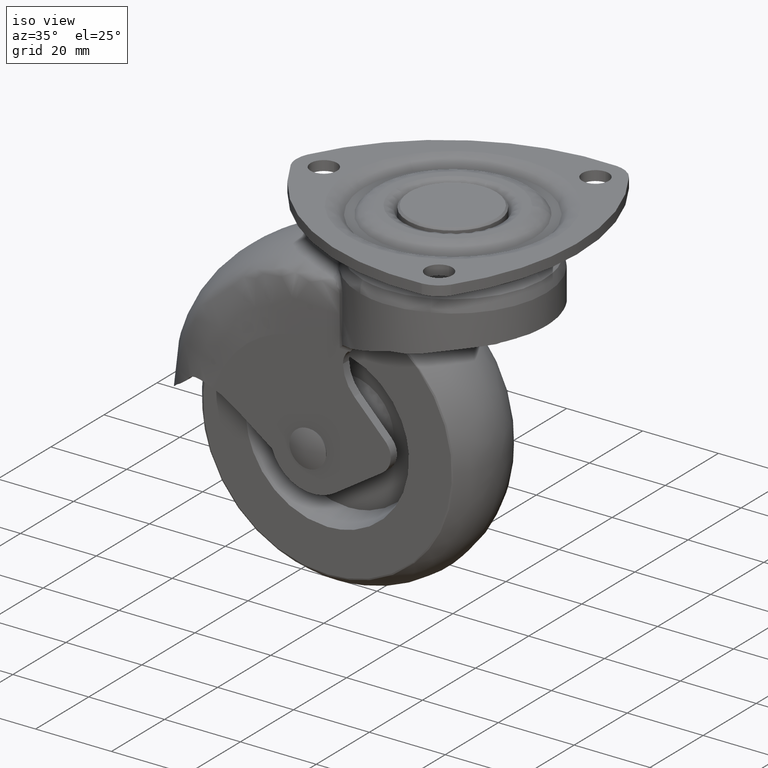
[diagram: clean part render]
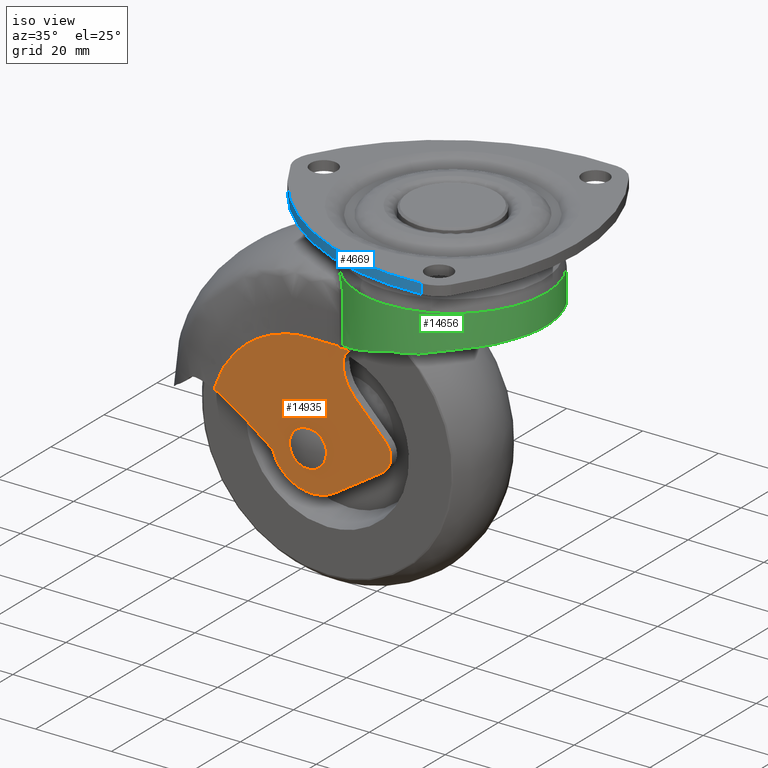
[diagram: same view with three faces highlighted in distinct colors, each labeled with its STEP entity id]
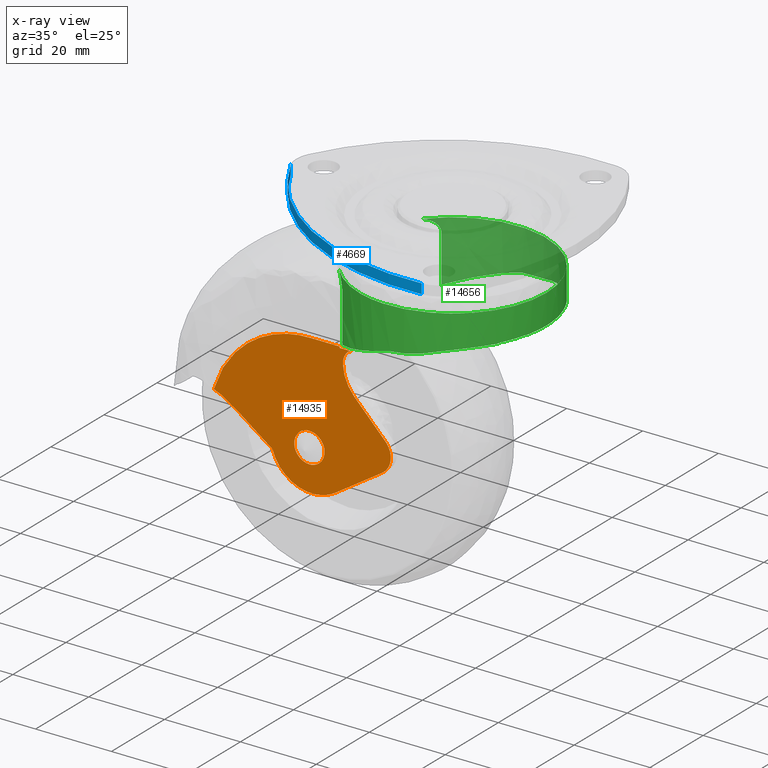
[diagram: x-ray of the same camera — body ghosted, the three highlighted faces saturated]
A machine part, iso view with three faces highlighted in distinct colors.
The next image is the same camera in x-ray (body ghosted, the three faces saturated) — at least one of them is partly hidden behind the body in this view.
Their STEP definitions:

[orange] entity #14935 — the highlighted face is a freeform B-spline surface patch.
#7384=CARTESIAN_POINT('',(-21.007460806320921,-18.300000000000001,-57.255805794820184));
#7385=VERTEX_POINT('',#7384);
#7391=CARTESIAN_POINT('',(-25.0,-18.300000000000001,-53.499999953096712));
#7392=VERTEX_POINT('',#7391);
#7393=CARTESIAN_POINT('',(-25.0,-18.300000000000001,-53.499999953096712));
#7394=CARTESIAN_POINT('',(-21.237175732636111,-18.300000000000011,-53.499999953096712));
#7395=CARTESIAN_POINT('',(-21.007460806320918,-18.300000000000001,-57.255805794820184));
#7403=(BOUNDED_CURVE()B_SPLINE_CURVE(2,(#7393,#7394,#7395),.UNSPECIFIED.,.F.,.U.)B_SPLINE_CURVE_WITH_KNOTS((3,3),(0.500000000000000,0.739332962230119),.UNSPECIFIED.)CURVE()GEOMETRIC_REPRESENTATION_ITEM()RATIONAL_B_SPLINE_CURVE((1.0,0.719603993297048,0.976072041647806))REPRESENTATION_ITEM(''));
#7404=EDGE_CURVE('',#7392,#7385,#7403,.T.);
#7406=CARTESIAN_POINT('',(-28.972038105448899,-18.300000000000001,-57.972136891772202));
#7407=VERTEX_POINT('',#7406);
#7408=CARTESIAN_POINT('',(-28.972038105448906,-18.300000000000001,-57.972136891772202));
#7409=CARTESIAN_POINT('',(-29.0,-18.299999999999994,-57.736896431753323));
#7410=CARTESIAN_POINT('',(-29.0,-18.300000000000001,-57.499999953096712));
#7411=CARTESIAN_POINT('',(-29.0,-18.300000000000001,-53.499999953096705));
#7412=CARTESIAN_POINT('',(-25.0,-18.300000000000001,-53.499999953096712));
#7420=(BOUNDED_CURVE()B_SPLINE_CURVE(2,(#7408,#7409,#7410,#7411,#7412),.UNSPECIFIED.,.F.,.U.)B_SPLINE_CURVE_WITH_KNOTS((3,2,3),(0.229562473511521,0.250000000000000,0.500000000000000),.UNSPECIFIED.)CURVE()GEOMETRIC_REPRESENTATION_ITEM()RATIONAL_B_SPLINE_CURVE((0.956026754179803,0.976055948328816,1.0,0.707106781186548,1.0))REPRESENTATION_ITEM(''));
#7421=EDGE_CURVE('',#7407,#7392,#7420,.T.);
#7465=CARTESIAN_POINT('',(-25.0,-18.300000000000001,-61.499999953096697));
#7466=VERTEX_POINT('',#7465);
#7467=CARTESIAN_POINT('',(-25.0,-18.300000000000001,-61.499999953096697));
#7468=CARTESIAN_POINT('',(-28.552698103718168,-18.300000000000004,-61.499999953096697));
#7469=CARTESIAN_POINT('',(-28.972038105448902,-18.300000000000008,-57.972136891772209));
#7477=(BOUNDED_CURVE()B_SPLINE_CURVE(2,(#7467,#7468,#7469),.UNSPECIFIED.,.F.,.U.)B_SPLINE_CURVE_WITH_KNOTS((3,3),(0.0,0.229562473511520),.UNSPECIFIED.)CURVE()GEOMETRIC_REPRESENTATION_ITEM()RATIONAL_B_SPLINE_CURVE((1.0,0.731050832857732,0.956026754179803))REPRESENTATION_ITEM(''));
#7478=EDGE_CURVE('',#7466,#7407,#7477,.T.);
#7480=CARTESIAN_POINT('',(-21.007460806320918,-18.300000000000001,-57.255805794820184));
#7481=CARTESIAN_POINT('',(-20.999999999999996,-18.300000000000004,-57.377788899764873));
#7482=CARTESIAN_POINT('',(-21.0,-18.300000000000001,-57.499999953096712));
#7483=CARTESIAN_POINT('',(-21.000000000000004,-18.300000000000001,-61.499999953096712));
#7484=CARTESIAN_POINT('',(-25.0,-18.300000000000001,-61.499999953096697));
#7492=(BOUNDED_CURVE()B_SPLINE_CURVE(2,(#7480,#7481,#7482,#7483,#7484),.UNSPECIFIED.,.F.,.U.)B_SPLINE_CURVE_WITH_KNOTS((3,2,3),(0.739332962230119,0.750000000000000,1.0),.UNSPECIFIED.)CURVE()GEOMETRIC_REPRESENTATION_ITEM()RATIONAL_B_SPLINE_CURVE((0.976072041647806,0.987502787889499,1.0,0.707106781186548,1.0))REPRESENTATION_ITEM(''));
#7493=EDGE_CURVE('',#7385,#7466,#7492,.T.);
#10979=CARTESIAN_POINT('',(-17.046099320972900,-18.300000000000001,-31.610879000000050));
#10980=VERTEX_POINT('',#10979);
#11055=CARTESIAN_POINT('',(-17.046102425195951,-18.300000000000001,-31.287769999999998));
#11056=VERTEX_POINT('',#11055);
#11101=CARTESIAN_POINT('',(-17.046099320972900,-18.300000000000001,-31.610879000000050));
#11102=CARTESIAN_POINT('',(-17.046102425195951,-18.300000000000001,-31.287769999999998));
#11103=QUASI_UNIFORM_CURVE('',1,(#11101,#11102),.UNSPECIFIED.,.F.,.U.);
#11104=EDGE_CURVE('',#10980,#11056,#11103,.T.);
#11885=CARTESIAN_POINT('',(-14.124589966944820,-18.300000000000001,-31.610879000000050));
#11886=VERTEX_POINT('',#11885);
#11887=CARTESIAN_POINT('',(-14.124589966944820,-18.300000000000001,-31.610879000000050));
#11888=CARTESIAN_POINT('',(-17.046099320972900,-18.300000000000001,-31.610879000000050));
#11889=QUASI_UNIFORM_CURVE('',1,(#11887,#11888),.UNSPECIFIED.,.F.,.U.);
#11890=EDGE_CURVE('',#11886,#10980,#11889,.T.);
#13290=CARTESIAN_POINT('',(-50.207508473559407,-18.300000000000001,-50.312137693318697));
#13291=VERTEX_POINT('',#13290);
#13299=CARTESIAN_POINT('',(-50.207508473559407,-18.300000000000001,-50.312137693318697));
#13300=CARTESIAN_POINT('',(-48.995257664423342,-18.300000000000001,-46.061299159340933));
#13301=CARTESIAN_POINT('',(-46.716146905110627,-18.300000000000001,-42.146455725329972));
#13302=CARTESIAN_POINT('',(-43.534845566438662,-18.300000000000001,-38.965154386658000));
#13303=CARTESIAN_POINT('',(-38.619098885583412,-18.300000000000001,-34.049407705802700));
#13304=CARTESIAN_POINT('',(-31.951915619043849,-18.300000000000001,-31.287769999999600));
#13305=CARTESIAN_POINT('',(-24.999999999998600,-18.300000000000001,-31.287769999999998));
#13306=CARTESIAN_POINT('',(-22.348700808397719,-18.300000000000001,-31.287769999999998));
#13307=CARTESIAN_POINT('',(-19.697401616796839,-18.300000000000001,-31.287769999999998));
#13308=CARTESIAN_POINT('',(-17.046102425195961,-18.300000000000001,-31.287769999999998));
#13309=B_SPLINE_CURVE_WITH_KNOTS('',3,(#13299,#13300,#13301,#13302,#13303,#13304,#13305,#13306,#13307,#13308),.UNSPECIFIED.,.F.,.U.,(4,3,3,4),(1.352834565080054,2.0,3.0,3.318155902992105),.UNSPECIFIED.);
#13310=EDGE_CURVE('',#13291,#11056,#13309,.T.);
#13427=CARTESIAN_POINT('',(-13.179507292334760,-18.300000000000001,-42.207269912696887));
#13428=VERTEX_POINT('',#13427);
#13434=CARTESIAN_POINT('',(-4.952273197888131,-18.300000000000001,-50.703396648435401));
#13435=VERTEX_POINT('',#13434);
#13436=CARTESIAN_POINT('',(-13.179507292334760,-18.300000000000001,-42.207269912696887));
#13437=CARTESIAN_POINT('',(-4.952273197888131,-18.300000000000001,-50.703396648435401));
#13438=QUASI_UNIFORM_CURVE('',1,(#13436,#13437),.UNSPECIFIED.,.F.,.U.);
#13439=EDGE_CURVE('',#13428,#13435,#13438,.T.);
#13472=CARTESIAN_POINT('',(-16.154043857779751,-18.300000000000001,-35.171783095885402));
#13473=VERTEX_POINT('',#13472);
#13479=CARTESIAN_POINT('',(-16.154043857779779,-18.300000000000001,-35.171783095885402));
#13480=CARTESIAN_POINT('',(-16.028439881342027,-18.300000000000004,-39.265225155197143));
#13481=CARTESIAN_POINT('',(-13.179507292334771,-18.300000000000001,-42.207269912696901));
#13489=(BOUNDED_CURVE()B_SPLINE_CURVE(2,(#13479,#13480,#13481),.UNSPECIFIED.,.F.,.U.)CURVE()GEOMETRIC_REPRESENTATION_ITEM()QUASI_UNIFORM_CURVE()RATIONAL_B_SPLINE_CURVE((1.0,0.932571919784052,1.0))REPRESENTATION_ITEM(''));
#13490=EDGE_CURVE('',#13473,#13428,#13489,.T.);
#13589=CARTESIAN_POINT('',(-14.778228296881840,-18.300000000000001,-31.861660974602700));
#13590=VERTEX_POINT('',#13589);
#13596=CARTESIAN_POINT('',(-14.778228296881849,-18.300000000000001,-31.861660974602689));
#13597=CARTESIAN_POINT('',(-16.214371047778531,-18.300000000000004,-33.205726465343098));
#13598=CARTESIAN_POINT('',(-16.154043857779751,-18.300000000000001,-35.171783095885402));
#13606=(BOUNDED_CURVE()B_SPLINE_CURVE(2,(#13596,#13597,#13598),.UNSPECIFIED.,.F.,.U.)CURVE()GEOMETRIC_REPRESENTATION_ITEM()QUASI_UNIFORM_CURVE()RATIONAL_B_SPLINE_CURVE((1.0,0.911207822454145,1.0))REPRESENTATION_ITEM(''));
#13607=EDGE_CURVE('',#13590,#13473,#13606,.T.);
#13627=CARTESIAN_POINT('',(-14.208397507781600,-18.300000000000001,-31.682298208941202));
#13628=VERTEX_POINT('',#13627);
#13629=CARTESIAN_POINT('',(-14.778228296881840,-18.300000000000001,-31.861660974602700));
#13630=CARTESIAN_POINT('',(-14.457216315265951,-18.300000000000001,-31.886657499505969));
#13631=CARTESIAN_POINT('',(-14.208397507781600,-18.300000000000001,-31.682298208941202));
#13639=(BOUNDED_CURVE()B_SPLINE_CURVE(2,(#13629,#13630,#13631),.UNSPECIFIED.,.F.,.U.)CURVE()GEOMETRIC_REPRESENTATION_ITEM()QUASI_UNIFORM_CURVE()RATIONAL_B_SPLINE_CURVE((1.0,0.927675212657828,1.0))REPRESENTATION_ITEM(''));
#13640=EDGE_CURVE('',#13590,#13628,#13639,.T.);
#13707=CARTESIAN_POINT('',(-14.208397507781600,-18.300000000000001,-31.682298208941202));
#13708=CARTESIAN_POINT('',(-14.165845121184443,-18.300000000000004,-31.647349729210465));
#13709=CARTESIAN_POINT('',(-14.124589966944820,-18.300000000000001,-31.610879000000050));
#13717=(BOUNDED_CURVE()B_SPLINE_CURVE(2,(#13707,#13708,#13709),.UNSPECIFIED.,.F.,.U.)CURVE()GEOMETRIC_REPRESENTATION_ITEM()QUASI_UNIFORM_CURVE()RATIONAL_B_SPLINE_CURVE((1.0,0.999835141074052,1.0))REPRESENTATION_ITEM(''));
#13718=EDGE_CURVE('',#13628,#11886,#13717,.T.);
#13919=CARTESIAN_POINT('',(-5.817731401935770,-18.300000000000001,-58.402660609861996));
#13920=VERTEX_POINT('',#13919);
#13921=CARTESIAN_POINT('',(-5.817731401935753,-18.300000000000001,-58.402660609862032));
#13922=CARTESIAN_POINT('',(-3.834184983865486,-18.300000000000001,-57.109898097085555));
#13923=CARTESIAN_POINT('',(-3.569709818995375,-18.300000000000001,-54.757081870890552));
#13924=CARTESIAN_POINT('',(-3.305234654125264,-18.300000000000001,-52.404265644695549));
#13925=CARTESIAN_POINT('',(-4.952273197888137,-18.300000000000001,-50.703396648435408));
#13933=(BOUNDED_CURVE()B_SPLINE_CURVE(2,(#13921,#13922,#13923,#13924,#13925),.UNSPECIFIED.,.F.,.U.)B_SPLINE_CURVE_WITH_KNOTS((3,2,3),(0.0,0.500000000000000,1.0),.UNSPECIFIED.)CURVE()GEOMETRIC_REPRESENTATION_ITEM()RATIONAL_B_SPLINE_CURVE((1.0,0.904483410382392,1.0,0.904483410382392,1.0))REPRESENTATION_ITEM(''));
#13934=EDGE_CURVE('',#13920,#13435,#13933,.T.);
#14000=CARTESIAN_POINT('',(-48.454342386355300,-18.300000000000001,-51.036551122672201));
#14001=VERTEX_POINT('',#14000);
#14007=CARTESIAN_POINT('',(-48.454342386355300,-18.300000000000001,-51.036551122672201));
#14008=CARTESIAN_POINT('',(-50.207508473559407,-18.300000000000001,-50.312137693318697));
#14009=QUASI_UNIFORM_CURVE('',1,(#14007,#14008),.UNSPECIFIED.,.F.,.U.);
#14010=EDGE_CURVE('',#14001,#13291,#14009,.T.);
#14051=CARTESIAN_POINT('',(-43.069651999999998,-18.300000000000001,-54.454900953096697));
#14052=VERTEX_POINT('',#14051);
#14058=CARTESIAN_POINT('',(-43.069651999999998,-18.300000000000001,-54.454900953096697));
#14059=CARTESIAN_POINT('',(-45.655245568241014,-18.300000000000001,-52.577567576334395));
#14060=CARTESIAN_POINT('',(-48.454342386355293,-18.300000000000001,-51.036551122672172));
#14068=(BOUNDED_CURVE()B_SPLINE_CURVE(2,(#14058,#14059,#14060),.UNSPECIFIED.,.F.,.U.)CURVE()GEOMETRIC_REPRESENTATION_ITEM()QUASI_UNIFORM_CURVE()RATIONAL_B_SPLINE_CURVE((1.0,0.998055181997854,1.0))REPRESENTATION_ITEM(''));
#14069=EDGE_CURVE('',#14052,#14001,#14068,.T.);
#14087=CARTESIAN_POINT('',(-34.750839257760397,-18.300000000000001,-60.494980210238403));
#14088=VERTEX_POINT('',#14087);
#14094=CARTESIAN_POINT('',(-34.750839257760397,-18.300000000000001,-60.494980210238403));
#14095=CARTESIAN_POINT('',(-43.069651999999998,-18.300000000000001,-54.454900953096697));
#14096=QUASI_UNIFORM_CURVE('',1,(#14094,#14095),.UNSPECIFIED.,.F.,.U.);
#14097=EDGE_CURVE('',#14088,#14052,#14096,.T.);
#14133=CARTESIAN_POINT('',(-18.249364755209001,-18.300000000000001,-66.504889386975705));
#14134=VERTEX_POINT('',#14133);
#14140=CARTESIAN_POINT('',(-34.750839257760433,-18.300000000000001,-60.494980210238417));
#14141=CARTESIAN_POINT('',(-33.157405161522092,-18.299999999999997,-65.745422506871719));
#14142=CARTESIAN_POINT('',(-28.001784810856002,-18.300000000000001,-67.623121984724506));
#14143=CARTESIAN_POINT('',(-22.846164460189904,-18.299999999999997,-69.500821462577292));
#14144=CARTESIAN_POINT('',(-18.249364755208980,-18.300000000000001,-66.504889386975748));
#14152=(BOUNDED_CURVE()B_SPLINE_CURVE(2,(#14140,#14141,#14142,#14143,#14144),.UNSPECIFIED.,.F.,.U.)B_SPLINE_CURVE_WITH_KNOTS((3,2,3),(0.0,0.500000000000000,1.0),.UNSPECIFIED.)CURVE()GEOMETRIC_REPRESENTATION_ITEM()RATIONAL_B_SPLINE_CURVE((1.0,0.894521773207874,1.0,0.894521773207874,1.0))REPRESENTATION_ITEM(''));
#14153=EDGE_CURVE('',#14088,#14134,#14152,.T.);
#14171=CARTESIAN_POINT('',(-5.817731401935770,-18.300000000000001,-58.402660609861996));
#14172=CARTESIAN_POINT('',(-18.249364755209001,-18.300000000000001,-66.504889386975705));
#14173=QUASI_UNIFORM_CURVE('',1,(#14171,#14172),.UNSPECIFIED.,.F.,.U.);
#14174=EDGE_CURVE('',#13920,#14134,#14173,.T.);
#14908=CARTESIAN_POINT('',(-52.538631662102517,-18.300000000000001,-70.131453375103547));
#14909=CARTESIAN_POINT('',(-1.207240130995378,-18.300000000000001,-70.131453375103547));
#14910=CARTESIAN_POINT('',(-52.538631662102517,-18.300000000000001,-29.439831569836318));
#14911=CARTESIAN_POINT('',(-1.207240130995378,-18.300000000000001,-29.439831569836318));
#14912=B_SPLINE_SURFACE_WITH_KNOTS('',1,1,((#14908,#14910),(#14909,#14911)),.UNSPECIFIED.,.F.,.F.,.U.,(2,2),(2,2),(0.0,51.331391531107137),(0.0,40.691621805267232),.UNSPECIFIED.);
#14913=ORIENTED_EDGE('',*,*,#11890,.T.);
#14914=ORIENTED_EDGE('',*,*,#11104,.T.);
#14915=ORIENTED_EDGE('',*,*,#13310,.F.);
#14916=ORIENTED_EDGE('',*,*,#14010,.F.);
#14917=ORIENTED_EDGE('',*,*,#14069,.F.);
#14918=ORIENTED_EDGE('',*,*,#14097,.F.);
#14919=ORIENTED_EDGE('',*,*,#14153,.T.);
#14920=ORIENTED_EDGE('',*,*,#14174,.F.);
#14921=ORIENTED_EDGE('',*,*,#13934,.T.);
#14922=ORIENTED_EDGE('',*,*,#13439,.F.);
#14923=ORIENTED_EDGE('',*,*,#13490,.F.);
#14924=ORIENTED_EDGE('',*,*,#13607,.F.);
#14925=ORIENTED_EDGE('',*,*,#13640,.T.);
#14926=ORIENTED_EDGE('',*,*,#13718,.T.);
#14927=EDGE_LOOP('',(#14913,#14914,#14915,#14916,#14917,#14918,#14919,#14920,#14921,#14922,#14923,#14924,#14925,#14926));
#14928=FACE_OUTER_BOUND('',#14927,.T.);
#14929=ORIENTED_EDGE('',*,*,#7404,.T.);
#14930=ORIENTED_EDGE('',*,*,#7493,.T.);
#14931=ORIENTED_EDGE('',*,*,#7478,.T.);
#14932=ORIENTED_EDGE('',*,*,#7421,.T.);
#14933=EDGE_LOOP('',(#14929,#14930,#14931,#14932));
#14934=FACE_BOUND('',#14933,.T.);
#14935=ADVANCED_FACE('',(#14928,#14934),#14912,.T.);

[blue] entity #4669 — the highlighted face is a freeform B-spline surface patch.
#4462=CARTESIAN_POINT('',(-40.512433752585700,-3.186017359993685,-0.000014399278325));
#4463=VERTEX_POINT('',#4462);
#4477=CARTESIAN_POINT('',(17.497044081159750,-36.677806277512147,-0.000014399278325));
#4478=VERTEX_POINT('',#4477);
#4479=CARTESIAN_POINT('',(-40.512433752585700,-3.186017359993685,-0.000014399278325));
#4480=CARTESIAN_POINT('',(-22.773694440163965,-39.445195359732807,-0.000014399278325));
#4481=CARTESIAN_POINT('',(17.497044081159750,-36.677806277512147,-0.000014399278325));
#4489=(BOUNDED_CURVE()B_SPLINE_CURVE(2,(#4479,#4480,#4481),.UNSPECIFIED.,.F.,.U.)CURVE()GEOMETRIC_REPRESENTATION_ITEM()QUASI_UNIFORM_CURVE()RATIONAL_B_SPLINE_CURVE((1.0,0.829708804344992,1.0))REPRESENTATION_ITEM(''));
#4490=EDGE_CURVE('',#4463,#4478,#4489,.T.);
#4607=CARTESIAN_POINT('',(17.497044081159750,-36.677806277512147,-2.600014399278260));
#4608=VERTEX_POINT('',#4607);
#4609=CARTESIAN_POINT('',(17.497044081159750,-36.677806277512147,-2.600014399278260));
#4610=CARTESIAN_POINT('',(17.497044081159750,-36.677806277512147,-0.000014399278325));
#4611=QUASI_UNIFORM_CURVE('',1,(#4609,#4610),.UNSPECIFIED.,.F.,.U.);
#4612=EDGE_CURVE('',#4608,#4478,#4611,.T.);
#4631=CARTESIAN_POINT('',(19.206063596198199,-36.535797713354192,-2.665014399278259));
#4632=CARTESIAN_POINT('',(19.206063596198199,-36.535797713354192,0.066610600721673));
#4633=CARTESIAN_POINT('',(-24.734558822512518,-40.820085420144288,-2.665014399278259));
#4634=CARTESIAN_POINT('',(-24.734558822512518,-40.820085420144288,0.066610600721673));
#4635=CARTESIAN_POINT('',(-41.897192241553697,-0.143588105086956,-2.665014399278259));
#4636=CARTESIAN_POINT('',(-41.897192241553697,-0.143588105086956,0.066610600721673));
#4644=(BOUNDED_SURFACE()B_SPLINE_SURFACE(1,2,((#4631,#4633,#4635),(#4632,#4634,#4636)),.UNSPECIFIED.,.F.,.F.,.U.)B_SPLINE_SURFACE_WITH_KNOTS((2,2),(3,3),(0.0,2.731624999999932),(0.0,78.782952600453697),.UNSPECIFIED.)GEOMETRIC_REPRESENTATION_ITEM()RATIONAL_B_SPLINE_SURFACE(((1.0,0.802438924306742,0.992536850836210),(1.0,0.802438924306742,0.992536850836210)))REPRESENTATION_ITEM('')SURFACE());
#4645=ORIENTED_EDGE('',*,*,#4490,.F.);
#4646=CARTESIAN_POINT('',(-40.512433752585700,-3.186017359993685,-2.600014399278260));
#4647=VERTEX_POINT('',#4646);
#4648=CARTESIAN_POINT('',(-40.512433752585700,-3.186017359993685,-2.600014399278260));
#4649=CARTESIAN_POINT('',(-40.512433752585700,-3.186017359993685,-0.000014399278325));
#4650=QUASI_UNIFORM_CURVE('',1,(#4648,#4649),.UNSPECIFIED.,.F.,.U.);
#4651=EDGE_CURVE('',#4647,#4463,#4650,.T.);
#4652=ORIENTED_EDGE('',*,*,#4651,.F.);
#4653=CARTESIAN_POINT('',(-40.512433752585700,-3.186017359993685,-2.600014399278260));
#4654=CARTESIAN_POINT('',(-22.773694440163965,-39.445195359732807,-2.600014399278260));
#4655=CARTESIAN_POINT('',(17.497044081159750,-36.677806277512147,-2.600014399278260));
#4663=(BOUNDED_CURVE()B_SPLINE_CURVE(2,(#4653,#4654,#4655),.UNSPECIFIED.,.F.,.U.)CURVE()GEOMETRIC_REPRESENTATION_ITEM()QUASI_UNIFORM_CURVE()RATIONAL_B_SPLINE_CURVE((1.0,0.829708804344992,1.0))REPRESENTATION_ITEM(''));
#4664=EDGE_CURVE('',#4647,#4608,#4663,.T.);
#4665=ORIENTED_EDGE('',*,*,#4664,.T.);
#4666=ORIENTED_EDGE('',*,*,#4612,.T.);
#4667=EDGE_LOOP('',(#4645,#4652,#4665,#4666));
#4668=FACE_OUTER_BOUND('',#4667,.T.);
#4669=ADVANCED_FACE('',(#4668),#4644,.T.);

[green] entity #14656 — the highlighted face is a freeform B-spline surface patch.
#9610=CARTESIAN_POINT('',(9.922295508212688,-22.539459713370668,-14.388141869462389));
#9611=VERTEX_POINT('',#9610);
#9625=CARTESIAN_POINT('',(-18.873077973117049,15.820433626912950,-14.388141869477501));
#9626=VERTEX_POINT('',#9625);
#9627=CARTESIAN_POINT('',(-18.873077973117059,15.820433626912960,-14.388141869477501));
#9628=CARTESIAN_POINT('',(-7.792564764519617,29.038996069617596,-14.388141869477504));
#9629=CARTESIAN_POINT('',(8.417116745549231,23.143710549838580,-14.388141869477501));
#9630=CARTESIAN_POINT('',(24.626798255618098,17.248425030059554,-14.388141869477504));
#9631=CARTESIAN_POINT('',(24.626798255618102,0.0,-14.388141869477501));
#9632=CARTESIAN_POINT('',(24.626798255618105,-16.066260115130763,-14.388141869477504));
#9633=CARTESIAN_POINT('',(9.922295508212688,-22.539459713370665,-14.388141869462395));
#9641=(BOUNDED_CURVE()B_SPLINE_CURVE(2,(#9627,#9628,#9629,#9630,#9631,#9632,#9633),.UNSPECIFIED.,.F.,.U.)B_SPLINE_CURVE_WITH_KNOTS((3,2,2,3),(0.0,0.250000000000000,0.500000000000000,0.735789341110267),.UNSPECIFIED.)CURVE()GEOMETRIC_REPRESENTATION_ITEM()RATIONAL_B_SPLINE_CURVE((1.0,0.819080853255457,1.0,0.819080853255457,1.0,0.829364774379490,0.980601288113075))REPRESENTATION_ITEM(''));
#9642=EDGE_CURVE('',#9626,#9611,#9641,.T.);
#9644=CARTESIAN_POINT('',(-18.873077973116999,-15.820433626912999,-14.388141869477501));
#9645=VERTEX_POINT('',#9644);
#9698=CARTESIAN_POINT('',(-8.156367922490748,-23.236885648381371,-14.388141869451429));
#9699=VERTEX_POINT('',#9698);
#9700=CARTESIAN_POINT('',(-8.156367922490748,-23.236885648381378,-14.388141869451429));
#9701=CARTESIAN_POINT('',(-14.532201456226389,-20.998907422699567,-14.388141869477501));
#9702=CARTESIAN_POINT('',(-18.873077973117010,-15.820433626913029,-14.388141869477501));
#9710=(BOUNDED_CURVE()B_SPLINE_CURVE(2,(#9700,#9701,#9702),.UNSPECIFIED.,.F.,.U.)B_SPLINE_CURVE_WITH_KNOTS((3,3),(0.889950421628687,1.0),.UNSPECIFIED.)CURVE()GEOMETRIC_REPRESENTATION_ITEM()RATIONAL_B_SPLINE_CURVE((0.910834447825182,0.920359696725861,1.0))REPRESENTATION_ITEM(''));
#9711=EDGE_CURVE('',#9699,#9645,#9710,.T.);
#9748=CARTESIAN_POINT('',(9.922295508212688,-22.539459713370672,-14.388141869462398));
#9749=CARTESIAN_POINT('',(9.179660619106501,-22.866381605825335,-14.388141869477504));
#9750=CARTESIAN_POINT('',(8.417116745549309,-23.143710549838548,-14.388141869477501));
#9751=CARTESIAN_POINT('',(0.147021848105577,-26.151454450655741,-14.388141869477504));
#9752=CARTESIAN_POINT('',(-8.156367922490748,-23.236885648381374,-14.388141869451438));
#9760=(BOUNDED_CURVE()B_SPLINE_CURVE(2,(#9748,#9749,#9750,#9751,#9752),.UNSPECIFIED.,.F.,.U.)B_SPLINE_CURVE_WITH_KNOTS((3,2,3),(0.735789341110268,0.750000000000000,0.889950421628688),.UNSPECIFIED.)CURVE()GEOMETRIC_REPRESENTATION_ITEM()RATIONAL_B_SPLINE_CURVE((0.980601288113075,0.989716078875968,1.0,0.898721156529595,0.910834447825183))REPRESENTATION_ITEM(''));
#9761=EDGE_CURVE('',#9611,#9699,#9760,.T.);
#10306=CARTESIAN_POINT('',(-18.993298132573852,15.675899909633349,-14.427053240921900));
#10307=VERTEX_POINT('',#10306);
#10334=CARTESIAN_POINT('',(-16.067446219484950,18.663236158640100,-30.632222794289000));
#10335=VERTEX_POINT('',#10334);
#10336=CARTESIAN_POINT('',(-16.067446219484950,18.663236158640100,-30.632222794289000));
#10337=CARTESIAN_POINT('',(-16.067446219485131,18.663236158639950,-27.544429797764192));
#10338=CARTESIAN_POINT('',(-16.067446219486950,18.663236158638391,-23.684688552108181));
#10339=CARTESIAN_POINT('',(-16.067446219490559,18.663236158635279,-19.631960244169370));
#10340=CARTESIAN_POINT('',(-16.067446219491590,18.663236158634390,-18.570531401613980));
#10341=CARTESIAN_POINT('',(-16.067446219491941,18.663236158634088,-18.232804042619080));
#10342=CARTESIAN_POINT('',(-16.067446219492091,18.663236158633961,-18.088063745906972));
#10343=CARTESIAN_POINT('',(-16.067446219492162,18.663236158633900,-18.015693597550928));
#10344=CARTESIAN_POINT('',(-16.067363906680100,18.663307025187919,-17.991569711100240));
#10345=CARTESIAN_POINT('',(-16.067835723059350,18.662900824976081,-17.943325832516141));
#10346=CARTESIAN_POINT('',(-16.070375042221560,18.660714025719461,-17.822724458271161));
#10347=CARTESIAN_POINT('',(-16.079714392947860,18.652673886856189,-17.702164689550159));
#10348=CARTESIAN_POINT('',(-16.103468144242580,18.632170346353782,-17.509323134917270));
#10349=CARTESIAN_POINT('',(-16.119927348439450,18.617944957552929,-17.412332229239890));
#10350=CARTESIAN_POINT('',(-16.180736763602091,18.565178443664529,-17.129786229782439));
#10351=CARTESIAN_POINT('',(-16.236478695129779,18.516594519864999,-16.950314502462099));
#10352=CARTESIAN_POINT('',(-16.338901143838449,18.426111814932860,-16.692404663130471));
#10353=CARTESIAN_POINT('',(-16.376200298425971,18.392992965302909,-16.608332190900690));
#10354=CARTESIAN_POINT('',(-16.456683713065122,18.321017646516982,-16.443788395295918));
#10355=CARTESIAN_POINT('',(-16.499436992642899,18.282544282209692,-16.364220631704971));
#10356=CARTESIAN_POINT('',(-16.633408874858379,18.161042355403151,-16.134315705845481));
#10357=CARTESIAN_POINT('',(-16.730646644382471,18.071657028980109,-15.991961788967449));
#10358=CARTESIAN_POINT('',(-16.885915197001388,17.926240769739071,-15.792287311383820));
#10359=CARTESIAN_POINT('',(-16.939255869984859,17.875865142958229,-15.728058483137280));
#10360=CARTESIAN_POINT('',(-17.048846939031680,17.771374794526061,-15.604035385672979));
#10361=CARTESIAN_POINT('',(-17.105192301487730,17.717164119737980,-15.544171896838369));
#10362=CARTESIAN_POINT('',(-17.275914003441610,17.551273230864819,-15.373304121284910));
#10363=CARTESIAN_POINT('',(-17.392683700029728,17.435665721494640,-15.270082761893651));
#10364=CARTESIAN_POINT('',(-17.630801243691270,17.194846115811480,-15.082686943321301));
#10365=CARTESIAN_POINT('',(-17.752158596988359,17.069628160332179,-14.998532984737350));
#10366=CARTESIAN_POINT('',(-17.937097979842711,16.874470661463441,-14.886057670116120));
#10367=CARTESIAN_POINT('',(-17.999232158032079,16.808192444422041,-14.850868913939070));
#10368=CARTESIAN_POINT('',(-18.124425759659879,16.673118556827919,-14.785120327428620));
#10369=CARTESIAN_POINT('',(-18.187509042315821,16.604292561402779,-14.754562886160249));
#10370=CARTESIAN_POINT('',(-18.282010458931840,16.499985051013240,-14.712585890897991));
#10371=CARTESIAN_POINT('',(-18.313522868477900,16.465003021210620,-14.699219283927830));
#10372=CARTESIAN_POINT('',(-18.376566585441871,16.394610238537531,-14.673733859792010));
#10373=CARTESIAN_POINT('',(-18.408075858092221,16.359223560223711,-14.661494063127559));
#10374=CARTESIAN_POINT('',(-18.502198293540498,16.252902254105059,-14.624242773605680));
#10375=CARTESIAN_POINT('',(-18.689232183779879,16.039157055178961,-14.549891757255921));
#10376=CARTESIAN_POINT('',(-18.872638288088471,15.822094285198419,-14.476035449623261));
#10377=CARTESIAN_POINT('',(-18.993298132573852,15.675899909633349,-14.427053240921900));
#10378=B_SPLINE_CURVE_WITH_KNOTS('',3,(#10336,#10337,#10338,#10339,#10340,#10341,#10342,#10343,#10344,#10345,#10346,#10347,#10348,#10349,#10350,#10351,#10352,#10353,#10354,#10355,#10356,#10357,#10358,#10359,#10360,#10361,#10362,#10363,#10364,#10365,#10366,#10367,#10368,#10369,#10370,#10371,#10372,#10373,#10374,#10375,#10376,#10377),.UNSPECIFIED.,.F.,.U.,(4,1,1,1,1,2,2,1,2,2,2,2,2,2,2,2,2,2,2,2,2,2,1,4),(0.0,0.499999999999988,0.624999999999985,0.656249999999984,0.671874999999984,0.679687499999984,0.683593749999984,0.687499999999984,0.703124999999986,0.718749999999987,0.749999999999990,0.765624999999991,0.781249999999993,0.812499999999994,0.828124999999995,0.843749999999995,0.874999999999997,0.906249999999998,0.921874999999999,0.937500000000000,0.945312500000000,0.953125000000000,0.968750000000000,1.0),.UNSPECIFIED.);
#10379=EDGE_CURVE('',#10335,#10307,#10378,.T.);
#10679=CARTESIAN_POINT('',(-18.993298132573852,15.675899909633349,-14.427053240921900));
#10680=CARTESIAN_POINT('',(-18.992660287804149,15.676672731738369,-14.422918446283790));
#10681=CARTESIAN_POINT('',(-18.991142545762418,15.678511571083920,-14.419297463039211));
#10682=CARTESIAN_POINT('',(-18.987353345989721,15.683100218658630,-14.413413177125101));
#10683=CARTESIAN_POINT('',(-18.985088891496030,15.685841500169779,-14.411055543238010));
#10684=CARTESIAN_POINT('',(-18.978068302950039,15.694336128739900,-14.405126260398349));
#10685=CARTESIAN_POINT('',(-18.972941150678430,15.700534263090860,-14.402491211746350));
#10686=CARTESIAN_POINT('',(-18.957650660858540,15.718999412084340,-14.396139983069080));
#10687=CARTESIAN_POINT('',(-18.947207701205681,15.731585910902480,-14.393893848579880));
#10688=CARTESIAN_POINT('',(-18.915635203156551,15.769560162445540,-14.388870464290839));
#10689=CARTESIAN_POINT('',(-18.894364647463931,15.795039668943881,-14.388140085212660));
#10690=CARTESIAN_POINT('',(-18.873077973117049,15.820433626912950,-14.388141869477501));
#10691=B_SPLINE_CURVE_WITH_KNOTS('',3,(#10679,#10680,#10681,#10682,#10683,#10684,#10685,#10686,#10687,#10688,#10689,#10690),.UNSPECIFIED.,.F.,.U.,(4,2,2,2,2,4),(0.0,0.062499999999996,0.124999999999993,0.250000000000027,0.500000000000032,1.0),.UNSPECIFIED.);
#10692=EDGE_CURVE('',#10307,#9626,#10691,.T.);
#10760=CARTESIAN_POINT('',(-18.993298132567251,-15.675899909626549,-14.427053240923099));
#10761=VERTEX_POINT('',#10760);
#10791=CARTESIAN_POINT('',(-18.873077973116999,-15.820433626912999,-14.388141869477501));
#10792=CARTESIAN_POINT('',(-18.894391373032342,-15.795007682974891,-14.388141869477501));
#10793=CARTESIAN_POINT('',(-18.915674714469791,-15.769513349236670,-14.388863459166320));
#10794=CARTESIAN_POINT('',(-18.947324088827870,-15.731446027421610,-14.393913943690420));
#10795=CARTESIAN_POINT('',(-18.957871928833519,-15.718732767147300,-14.396193687934719));
#10796=CARTESIAN_POINT('',(-18.973176961975280,-15.700249421115620,-14.402606421029409));
#10797=CARTESIAN_POINT('',(-18.978245205799858,-15.694122270449590,-14.405239595618550));
#10798=CARTESIAN_POINT('',(-18.985202036650151,-15.685704600281960,-14.411168767684350));
#10799=CARTESIAN_POINT('',(-18.987429158505410,-15.683008464732330,-14.413509379566820));
#10800=CARTESIAN_POINT('',(-18.991169111062629,-15.678479401687770,-14.419360144255700));
#10801=CARTESIAN_POINT('',(-18.992668500032771,-15.676662787580019,-14.422971576512330));
#10802=CARTESIAN_POINT('',(-18.993298132567251,-15.675899909626549,-14.427053240923099));
#10803=B_SPLINE_CURVE_WITH_KNOTS('',3,(#10791,#10792,#10793,#10794,#10795,#10796,#10797,#10798,#10799,#10800,#10801,#10802),.UNSPECIFIED.,.F.,.U.,(4,2,2,2,2,4),(0.0,0.500000000000043,0.750000000000049,0.875000000000036,0.937500000000018,1.0),.UNSPECIFIED.);
#10804=EDGE_CURVE('',#9645,#10761,#10803,.T.);
#10977=CARTESIAN_POINT('',(-16.067446219484900,-18.663236158640149,-30.632222794289000));
#10978=VERTEX_POINT('',#10977);
#10999=CARTESIAN_POINT('',(-18.993298132567251,-15.675899909626560,-14.427053240923090));
#11000=CARTESIAN_POINT('',(-18.874094714465951,-15.820329643898390,-14.475444209172990));
#11001=CARTESIAN_POINT('',(-18.692962517699119,-16.034761029908360,-14.548391754502299));
#11002=CARTESIAN_POINT('',(-18.508338334582639,-16.245902918444461,-14.621804282749940));
#11003=CARTESIAN_POINT('',(-18.415443563149431,-16.350927640506931,-14.658581648028280));
#11004=CARTESIAN_POINT('',(-18.384351842620330,-16.385877991199479,-14.670708104414150));
#11005=CARTESIAN_POINT('',(-18.322111759704210,-16.455443199155731,-14.695654024304440));
#11006=CARTESIAN_POINT('',(-18.291016029850550,-16.489999652245771,-14.708728834149760));
#11007=CARTESIAN_POINT('',(-18.135670426028110,-16.661661808635500,-14.777111030665960));
#11008=CARTESIAN_POINT('',(-18.011810081771401,-16.795417694263509,-14.841396618552960));
#11009=CARTESIAN_POINT('',(-17.826971621569228,-16.990771943538078,-14.952704196359569));
#11010=CARTESIAN_POINT('',(-17.765431812295748,-17.055098445125662,-14.992356232982980));
#11011=CARTESIAN_POINT('',(-17.643135698601359,-17.181580636571120,-15.076586733330069));
#11012=CARTESIAN_POINT('',(-17.582713702721801,-17.243392893385099,-15.120927240436449));
#11013=CARTESIAN_POINT('',(-17.403754875548660,-17.424619334558638,-15.260681009918390));
#11014=CARTESIAN_POINT('',(-17.287501495530972,-17.539845894161779,-15.362778448823480));
#11015=CARTESIAN_POINT('',(-17.062278135526640,-17.759013676858810,-15.586166465019829));
#11016=CARTESIAN_POINT('',(-16.953290918744528,-17.862966902265860,-15.707426718127159));
#11017=CARTESIAN_POINT('',(-16.796857285539168,-18.009717076009210,-15.906101657649540));
#11018=CARTESIAN_POINT('',(-16.745889860623290,-18.057097966870089,-15.975204846822880));
#11019=CARTESIAN_POINT('',(-16.648348360240220,-18.147068939235261,-16.117177502507101));
#11020=CARTESIAN_POINT('',(-16.601556897551180,-18.189864056990331,-16.190308574557051));
#11021=CARTESIAN_POINT('',(-16.467682938037552,-18.311449047038789,-16.416552874539519));
#11022=CARTESIAN_POINT('',(-16.387011717456780,-18.383517871278030,-16.576430061496250));
#11023=CARTESIAN_POINT('',(-16.282398361936970,-18.476062435433061,-16.832743848657529));
#11024=CARTESIAN_POINT('',(-16.250153138540210,-18.504409609892239,-16.921416337617750));
#11025=CARTESIAN_POINT('',(-16.193047236970870,-18.554403068218349,-17.101798797927440));
#11026=CARTESIAN_POINT('',(-16.168084402663549,-18.576141657968272,-17.193655254489322));
#11027=CARTESIAN_POINT('',(-16.136448871288842,-18.603613219166061,-17.334103694078969));
#11028=CARTESIAN_POINT('',(-16.126872993588709,-18.611913057643829,-17.381364397437022));
#11029=CARTESIAN_POINT('',(-16.109746122292659,-18.626739384334289,-17.476810502665732));
#11030=CARTESIAN_POINT('',(-16.102208621532910,-18.633254181058081,-17.524966407481610));
#11031=CARTESIAN_POINT('',(-16.082950648199521,-18.649884667983269,-17.669180260797120));
#11032=CARTESIAN_POINT('',(-16.074477745774530,-18.657181101417660,-17.765528003237730));
#11033=CARTESIAN_POINT('',(-16.068302141347392,-18.662499446856110,-17.910355597515871));
#11034=CARTESIAN_POINT('',(-16.067446219492219,-18.663236158633850,-17.958687792780911));
#11035=CARTESIAN_POINT('',(-16.067446219492119,-18.663236158633939,-18.055432334777151));
#11036=CARTESIAN_POINT('',(-16.067446219491980,-18.663236158634071,-18.200549147771529));
#11037=CARTESIAN_POINT('',(-16.067446219491629,-18.663236158634358,-18.539155044758370));
#11038=CARTESIAN_POINT('',(-16.067446219490570,-18.663236158635272,-19.603345006717070));
#11039=CARTESIAN_POINT('',(-16.067446219486978,-18.663236158638369,-23.666615770559350));
#11040=CARTESIAN_POINT('',(-16.067446219485092,-18.663236158639990,-27.536397450409169));
#11041=CARTESIAN_POINT('',(-16.067446219484900,-18.663236158640149,-30.632222794289000));
#11042=B_SPLINE_CURVE_WITH_KNOTS('',3,(#10999,#11000,#11001,#11002,#11003,#11004,#11005,#11006,#11007,#11008,#11009,#11010,#11011,#11012,#11013,#11014,#11015,#11016,#11017,#11018,#11019,#11020,#11021,#11022,#11023,#11024,#11025,#11026,#11027,#11028,#11029,#11030,#11031,#11032,#11033,#11034,#11035,#11036,#11037,#11038,#11039,#11040,#11041),.UNSPECIFIED.,.F.,.U.,(4,1,2,2,2,2,2,2,2,2,2,2,2,2,2,2,2,2,2,1,1,1,1,4),(0.0,0.031250000000001,0.046875000000001,0.054687500000001,0.062500000000001,0.093750000000001,0.109375000000001,0.125000000000002,0.156250000000002,0.187500000000003,0.203125000000003,0.218750000000003,0.250000000000005,0.265625000000006,0.281250000000006,0.289062500000007,0.296875000000007,0.312500000000009,0.320312500000009,0.328125000000009,0.343750000000009,0.375000000000009,0.500000000000007,1.0),.UNSPECIFIED.);
#11043=EDGE_CURVE('',#10761,#10978,#11042,.T.);
#11692=CARTESIAN_POINT('',(-7.173683082527550,23.558809031032801,-27.609882467359299));
#11693=VERTEX_POINT('',#11692);
#11752=CARTESIAN_POINT('',(-15.314107935785350,19.286194805101601,-30.201622379758199));
#11753=VERTEX_POINT('',#11752);
#11759=CARTESIAN_POINT('',(-7.173683082527531,23.558809031032769,-27.609882467359309));
#11760=CARTESIAN_POINT('',(-7.913201256664300,23.333624939254680,-27.815864008135300));
#11761=CARTESIAN_POINT('',(-8.634501694231568,23.076117454067870,-28.036633055706581));
#11762=CARTESIAN_POINT('',(-10.047002153667060,22.497101235177670,-28.488073130101249));
#11763=CARTESIAN_POINT('',(-10.738175971003120,22.175583742926332,-28.718817182799949));
#11764=CARTESIAN_POINT('',(-11.755363566642410,21.643407096478761,-29.060011952270141));
#11765=CARTESIAN_POINT('',(-12.091148641427409,21.457674555781889,-29.172940518514679));
#11766=CARTESIAN_POINT('',(-12.590170827582730,21.166103223832430,-29.339648930522511));
#11767=CARTESIAN_POINT('',(-12.755734917732740,21.066749041977491,-29.394771113216532));
#11768=CARTESIAN_POINT('',(-13.085345034805471,20.863615070481369,-29.503872036608801));
#11769=CARTESIAN_POINT('',(-13.249529451084451,20.759743731648459,-29.557895748786301));
#11770=CARTESIAN_POINT('',(-14.064583523973120,20.230451278745811,-29.823823072247919));
#11771=CARTESIAN_POINT('',(-14.698147508269050,19.775295151429390,-30.023299280075520));
#11772=CARTESIAN_POINT('',(-15.314107935785350,19.286194805101601,-30.201622379758199));
#11773=B_SPLINE_CURVE_WITH_KNOTS('',3,(#11759,#11760,#11761,#11762,#11763,#11764,#11765,#11766,#11767,#11768,#11769,#11770,#11771,#11772),.UNSPECIFIED.,.F.,.U.,(4,2,2,2,2,2,4),(0.0,0.249999999999999,0.499999999999999,0.624999999999999,0.687499999999999,0.749999999999999,0.999999983616640),.UNSPECIFIED.);
#11774=EDGE_CURVE('',#11693,#11753,#11773,.T.);
#11801=CARTESIAN_POINT('',(-16.067446219484939,18.663236158640110,-30.632222794289021));
#11802=CARTESIAN_POINT('',(-16.013273650798670,18.709874095734168,-30.578050225602752));
#11803=CARTESIAN_POINT('',(-15.955286500318850,18.759374870375620,-30.528472295321428));
#11804=CARTESIAN_POINT('',(-15.835969276012721,18.860206518586111,-30.439856734186542));
#11805=CARTESIAN_POINT('',(-15.774459530028460,18.911699034886482,-30.400552580648839));
#11806=CARTESIAN_POINT('',(-15.648189927415681,19.016311047260420,-30.330332135822459));
#11807=CARTESIAN_POINT('',(-15.583426361444291,19.069434106711348,-30.299427990882929));
#11808=CARTESIAN_POINT('',(-15.450894751495641,19.176974362264961,-30.245057149070799));
#11809=CARTESIAN_POINT('',(-15.382968468051789,19.231516438824539,-30.221557733077230));
#11810=CARTESIAN_POINT('',(-15.314107935785350,19.286194805101601,-30.201622379758199));
#11811=B_SPLINE_CURVE_WITH_KNOTS('',3,(#11801,#11802,#11803,#11804,#11805,#11806,#11807,#11808,#11809,#11810),.UNSPECIFIED.,.F.,.U.,(4,2,2,2,4),(0.0,0.250000000000000,0.500000000000000,0.750000000000000,1.0),.UNSPECIFIED.);
#11812=EDGE_CURVE('',#10335,#11753,#11811,.T.);
#11866=CARTESIAN_POINT('',(-15.314107935785300,-19.286194805101651,-30.201622379758199));
#11867=VERTEX_POINT('',#11866);
#11873=CARTESIAN_POINT('',(-15.314107935785300,-19.286194805101651,-30.201622379758199));
#11874=CARTESIAN_POINT('',(-15.452062835186959,-19.176652397122432,-30.241560782369191));
#11875=CARTESIAN_POINT('',(-15.584522989703601,-19.069051160837130,-30.294991243900458));
#11876=CARTESIAN_POINT('',(-15.773824469986611,-18.912228525077818,-30.400167016766179));
#11877=CARTESIAN_POINT('',(-15.835348532729791,-18.860728045661411,-30.439435914266578));
#11878=CARTESIAN_POINT('',(-15.954793172123621,-18.759794785662869,-30.528066080153948));
#11879=CARTESIAN_POINT('',(-16.013008444762811,-18.710102415393301,-30.577785019566878));
#11880=CARTESIAN_POINT('',(-16.067446219484911,-18.663236158640139,-30.632222794288989));
#11881=B_SPLINE_CURVE_WITH_KNOTS('',3,(#11873,#11874,#11875,#11876,#11877,#11878,#11879,#11880),.UNSPECIFIED.,.F.,.U.,(4,2,2,4),(0.0,0.499999999999998,0.749999999999999,1.0),.UNSPECIFIED.);
#11882=EDGE_CURVE('',#11867,#10978,#11881,.T.);
#11980=CARTESIAN_POINT('',(-7.173683082528211,-23.558809031032549,-27.609882467359501));
#11981=VERTEX_POINT('',#11980);
#11995=CARTESIAN_POINT('',(-15.314107935785300,-19.286194805101651,-30.201622379758199));
#11996=CARTESIAN_POINT('',(-14.697072151138739,-19.776149033470730,-30.022987960625329));
#11997=CARTESIAN_POINT('',(-14.066112411831570,-20.229099388441551,-29.824262298111080));
#11998=CARTESIAN_POINT('',(-12.775021844387320,-21.068241440678239,-29.403137234494960));
#11999=CARTESIAN_POINT('',(-12.114903751869070,-21.454398196217451,-29.180638061523620));
#12000=CARTESIAN_POINT('',(-10.762679188404171,-22.163637597795219,-28.727011428549911));
#12001=CARTESIAN_POINT('',(-10.070597190086890,-22.486714880997191,-28.495798846747078));
#12002=CARTESIAN_POINT('',(-9.004834439502648,-22.924652323211308,-28.154904086021372));
#12003=CARTESIAN_POINT('',(-8.644955293146200,-23.062829813777281,-28.042279070978481));
#12004=CARTESIAN_POINT('',(-8.097538337154827,-23.258259276763489,-27.876672676128148));
#12005=CARTESIAN_POINT('',(-7.913856349157515,-23.321402291988679,-27.822047912777379));
#12006=CARTESIAN_POINT('',(-7.545075123502039,-23.443309675909379,-27.714599278514019));
#12007=CARTESIAN_POINT('',(-7.359829098635659,-23.502127365806150,-27.661730609228201));
#12008=CARTESIAN_POINT('',(-7.173683082528213,-23.558809031032560,-27.609882467359501));
#12009=B_SPLINE_CURVE_WITH_KNOTS('',3,(#11995,#11996,#11997,#11998,#11999,#12000,#12001,#12002,#12003,#12004,#12005,#12006,#12007,#12008),.UNSPECIFIED.,.F.,.U.,(4,2,2,2,2,2,4),(0.000000016354804,0.250000000000000,0.500000000000000,0.750000000000000,0.875000000000000,0.937500000000000,1.0),.UNSPECIFIED.);
#12010=EDGE_CURVE('',#11867,#11981,#12009,.T.);
#12358=CARTESIAN_POINT('',(7.517743410269629,23.451284504439549,-24.509368551205750));
#12359=VERTEX_POINT('',#12358);
#12366=CARTESIAN_POINT('',(4.198506369731574,24.266267866990500,-24.989711170557399));
#12367=VERTEX_POINT('',#12366);
#12373=CARTESIAN_POINT('',(4.198506369731613,24.266267866990500,-24.989711170557381));
#12374=CARTESIAN_POINT('',(5.886470081463595,23.974219397302960,-24.745438140843181));
#12375=CARTESIAN_POINT('',(7.517743410269629,23.451284504439549,-24.509368551205750));
#12383=(BOUNDED_CURVE()B_SPLINE_CURVE(2,(#12373,#12374,#12375),.UNSPECIFIED.,.F.,.U.)CURVE()GEOMETRIC_REPRESENTATION_ITEM()QUASI_UNIFORM_CURVE()RATIONAL_B_SPLINE_CURVE((1.0,0.997589441414327,1.0))REPRESENTATION_ITEM(''));
#12384=EDGE_CURVE('',#12367,#12359,#12383,.T.);
#12403=CARTESIAN_POINT('',(14.136879930797219,20.165015193434250,-23.075133335102699));
#12404=VERTEX_POINT('',#12403);
#12412=CARTESIAN_POINT('',(7.517743410269629,23.451284504439549,-24.509368551205750));
#12413=CARTESIAN_POINT('',(8.688740548878361,23.075899715045740,-24.188415628146430));
#12414=CARTESIAN_POINT('',(9.827021469545011,22.614749590173460,-23.912988526937038));
#12415=CARTESIAN_POINT('',(12.035146505989760,21.520978104363930,-23.439184630117960));
#12416=CARTESIAN_POINT('',(13.105025933534639,20.888406470027959,-23.240856812339231));
#12417=CARTESIAN_POINT('',(14.136879930797219,20.165015193434250,-23.075133335102699));
#12418=B_SPLINE_CURVE_WITH_KNOTS('',3,(#12412,#12413,#12414,#12415,#12416,#12417),.UNSPECIFIED.,.F.,.U.,(4,2,4),(0.0,0.500000000000000,1.0),.UNSPECIFIED.);
#12419=EDGE_CURVE('',#12359,#12404,#12418,.T.);
#12438=CARTESIAN_POINT('',(20.788905299943899,13.202296329017020,-22.525146326671450));
#12439=VERTEX_POINT('',#12438);
#12447=CARTESIAN_POINT('',(14.136879930797241,20.165015193434250,-23.075133335102699));
#12448=CARTESIAN_POINT('',(14.799612393701780,19.700400157717660,-22.968693591159742));
#12449=CARTESIAN_POINT('',(15.435334855745250,19.206103143026979,-22.882266454239740));
#12450=CARTESIAN_POINT('',(16.653659328418019,18.159834553832550,-22.741539906884672));
#12451=CARTESIAN_POINT('',(17.236259812076430,17.607859785894860,-22.687257262747870));
#12452=CARTESIAN_POINT('',(18.347825676442820,16.446357392930508,-22.604110284933881));
#12453=CARTESIAN_POINT('',(18.876795987930031,15.836833712375610,-22.575257506489439));
#12454=CARTESIAN_POINT('',(19.628552889910718,14.878306442459410,-22.546553573988760));
#12455=CARTESIAN_POINT('',(19.872515437929930,14.550893837699389,-22.539416421035110));
#12456=CARTESIAN_POINT('',(20.343208433590089,13.885217028706130,-22.529348623750789));
#12457=CARTESIAN_POINT('',(20.570229070866489,13.546633352164781,-22.526400576136911));
#12458=CARTESIAN_POINT('',(20.788905299943899,13.202296329017020,-22.525146326671450));
#12459=B_SPLINE_CURVE_WITH_KNOTS('',3,(#12447,#12448,#12449,#12450,#12451,#12452,#12453,#12454,#12455,#12456,#12457,#12458),.UNSPECIFIED.,.F.,.U.,(4,2,2,2,2,4),(0.0,0.250000000000000,0.500000000000000,0.750000000000000,0.875000000000000,1.0),.UNSPECIFIED.);
#12460=EDGE_CURVE('',#12404,#12439,#12459,.T.);
#12479=CARTESIAN_POINT('',(21.883017626852599,11.296581406428739,-22.314490825740549));
#12480=VERTEX_POINT('',#12479);
#12488=CARTESIAN_POINT('',(20.788905299943899,13.202296329017020,-22.525146326671450));
#12489=CARTESIAN_POINT('',(20.885166157179089,13.050719830862260,-22.475017927167219));
#12490=CARTESIAN_POINT('',(20.980385212146931,12.897117419308049,-22.435524474765380));
#12491=CARTESIAN_POINT('',(21.168332697741210,12.586258068831761,-22.373055692362222));
#12492=CARTESIAN_POINT('',(21.261064554479312,12.428997054756531,-22.350125836432049));
#12493=CARTESIAN_POINT('',(21.443781107390851,12.111031566104939,-22.318084066760019));
#12494=CARTESIAN_POINT('',(21.533767258128471,11.950325471341340,-22.308990635537398));
#12495=CARTESIAN_POINT('',(21.710806273527002,11.625588249702320,-22.302922681367232));
#12496=CARTESIAN_POINT('',(21.797943922837629,11.461380766497490,-22.305980456602899));
#12497=CARTESIAN_POINT('',(21.883017626852599,11.296581406428739,-22.314490825740549));
#12498=B_SPLINE_CURVE_WITH_KNOTS('',3,(#12488,#12489,#12490,#12491,#12492,#12493,#12494,#12495,#12496,#12497),.UNSPECIFIED.,.F.,.U.,(4,2,2,2,4),(0.0,0.250000000000000,0.500000000000000,0.750000000000000,1.0),.UNSPECIFIED.);
#12499=EDGE_CURVE('',#12439,#12480,#12498,.T.);
#12520=CARTESIAN_POINT('',(22.487158880475750,10.040263811945060,-22.245643121135000));
#12521=VERTEX_POINT('',#12520);
#12522=CARTESIAN_POINT('',(22.487158880475750,10.040263811945060,-22.245643121135000));
#12523=CARTESIAN_POINT('',(22.392810117937199,10.251576549889821,-22.277606321833730));
#12524=CARTESIAN_POINT('',(22.295324434331420,10.461916256811961,-22.299809862567841));
#12525=CARTESIAN_POINT('',(22.093988536956530,10.880664225732760,-22.323595030797151));
#12526=CARTESIAN_POINT('',(21.990139394425789,11.089071944611399,-22.325206095321469));
#12527=CARTESIAN_POINT('',(21.883017626852599,11.296581406428739,-22.314490825740549));
#12528=B_SPLINE_CURVE_WITH_KNOTS('',3,(#12522,#12523,#12524,#12525,#12526,#12527),.UNSPECIFIED.,.F.,.U.,(4,2,4),(0.000000313430960,0.500000000000000,1.0),.UNSPECIFIED.);
#12529=EDGE_CURVE('',#12521,#12480,#12528,.T.);
#12531=CARTESIAN_POINT('',(22.487158880475750,-10.040263811945060,-22.245643121135000));
#12532=VERTEX_POINT('',#12531);
#12538=CARTESIAN_POINT('',(21.883017626852599,-11.296581406428739,-22.314490825740549));
#12539=VERTEX_POINT('',#12538);
#12540=CARTESIAN_POINT('',(21.883017626852599,-11.296581406428739,-22.314490825740549));
#12541=CARTESIAN_POINT('',(21.990139394425800,-11.089071944611410,-22.325206095321480));
#12542=CARTESIAN_POINT('',(22.093988536956541,-10.880664225732760,-22.323595030797151));
#12543=CARTESIAN_POINT('',(22.295324434331420,-10.461916256811961,-22.299809862567841));
#12544=CARTESIAN_POINT('',(22.392810117937199,-10.251576549889821,-22.277606321833730));
#12545=CARTESIAN_POINT('',(22.487158880475750,-10.040263811945060,-22.245643121135000));
#12546=B_SPLINE_CURVE_WITH_KNOTS('',3,(#12540,#12541,#12542,#12543,#12544,#12545),.UNSPECIFIED.,.F.,.U.,(4,2,4),(0.0,0.500000000000000,0.999999686569040),.UNSPECIFIED.);
#12547=EDGE_CURVE('',#12539,#12532,#12546,.T.);
#12571=CARTESIAN_POINT('',(22.970975396438849,8.877696844644630,-22.246199520762399));
#12572=VERTEX_POINT('',#12571);
#12573=CARTESIAN_POINT('',(22.970975396438849,-8.877696844644630,-22.246199520762399));
#12574=VERTEX_POINT('',#12573);
#12580=CARTESIAN_POINT('',(22.487158880475750,-10.040263811945060,-22.245643121135000));
#12581=CARTESIAN_POINT('',(22.658338716857610,-9.656872673031641,-22.262511659994502));
#12582=CARTESIAN_POINT('',(22.819611565641551,-9.269349647929003,-22.260763966864250));
#12583=CARTESIAN_POINT('',(22.970975396438849,-8.877696844644630,-22.246199520762399));
#12584=QUASI_UNIFORM_CURVE('',3,(#12580,#12581,#12582,#12583),.UNSPECIFIED.,.F.,.U.);
#12585=EDGE_CURVE('',#12532,#12574,#12584,.T.);
#12588=CARTESIAN_POINT('',(22.970975396438849,8.877696844644630,-22.246199520762399));
#12589=CARTESIAN_POINT('',(22.819611565641551,9.269349647929003,-22.260763966864250));
#12590=CARTESIAN_POINT('',(22.658338716857610,9.656872673031641,-22.262511659994502));
#12591=CARTESIAN_POINT('',(22.487158880475750,10.040263811945060,-22.245643121135000));
#12592=QUASI_UNIFORM_CURVE('',3,(#12588,#12589,#12590,#12591),.UNSPECIFIED.,.F.,.U.);
#12593=EDGE_CURVE('',#12572,#12521,#12592,.T.);
#12612=CARTESIAN_POINT('',(23.068614000000000,8.620803909625630,-22.191144953096750));
#12613=VERTEX_POINT('',#12612);
#12614=CARTESIAN_POINT('',(23.068614000000000,-8.620803909625630,-22.191144953096750));
#12615=VERTEX_POINT('',#12614);
#12621=CARTESIAN_POINT('',(22.970975396438849,-8.877696844644630,-22.246199520762399));
#12622=CARTESIAN_POINT('',(22.987963658795149,-8.833739834509686,-22.244564966351611));
#12623=CARTESIAN_POINT('',(23.004648519450171,-8.790192036515007,-22.239924039898661));
#12624=CARTESIAN_POINT('',(23.029166837887630,-8.725664213528040,-22.227304097255189));
#12625=CARTESIAN_POINT('',(23.037254000673379,-8.704289292198272,-22.222140962690990));
#12626=CARTESIAN_POINT('',(23.053213246676592,-8.661932984652793,-22.209090927497300));
#12627=CARTESIAN_POINT('',(23.061102734458760,-8.640903480622427,-22.201236080844840));
#12628=CARTESIAN_POINT('',(23.068614000000000,-8.620803909625630,-22.191144953096750));
#12629=B_SPLINE_CURVE_WITH_KNOTS('',3,(#12621,#12622,#12623,#12624,#12625,#12626,#12627,#12628),.UNSPECIFIED.,.F.,.U.,(4,2,2,4),(0.0,0.500000000000006,0.750000000000003,1.0),.UNSPECIFIED.);
#12630=EDGE_CURVE('',#12574,#12615,#12629,.T.);
#12633=CARTESIAN_POINT('',(23.068614000000000,8.620803909625630,-22.191144953096750));
#12634=CARTESIAN_POINT('',(23.061084746248540,8.640951615694526,-22.201260247388589));
#12635=CARTESIAN_POINT('',(23.053307487902789,8.661681742022838,-22.208994918297169));
#12636=CARTESIAN_POINT('',(23.037463051177550,8.703735568365163,-22.221988608168001));
#12637=CARTESIAN_POINT('',(23.029389007861859,8.725077991756024,-22.227172569576261));
#12638=CARTESIAN_POINT('',(23.004806898391990,8.789778177017281,-22.239876243196392));
#12639=CARTESIAN_POINT('',(22.987959961320879,8.833749401698569,-22.244565322110361));
#12640=CARTESIAN_POINT('',(22.970975396438849,8.877696844644630,-22.246199520762399));
#12641=B_SPLINE_CURVE_WITH_KNOTS('',3,(#12633,#12634,#12635,#12636,#12637,#12638,#12639,#12640),.UNSPECIFIED.,.F.,.U.,(4,2,2,4),(0.0,0.250000000000004,0.500000000000008,1.0),.UNSPECIFIED.);
#12642=EDGE_CURVE('',#12613,#12572,#12641,.T.);
#12652=CARTESIAN_POINT('',(23.646465039310350,-6.879237102077270,-22.192043508535200));
#12653=VERTEX_POINT('',#12652);
#12654=CARTESIAN_POINT('',(23.646465039310350,-6.879237102077270,-22.192043508535200));
#12655=CARTESIAN_POINT('',(23.390002858851634,-7.760791826475153,-22.191644958433852));
#12656=CARTESIAN_POINT('',(23.068613999999990,-8.620803909625629,-22.191144953096710));
#12664=(BOUNDED_CURVE()B_SPLINE_CURVE(2,(#12654,#12655,#12656),.UNSPECIFIED.,.F.,.U.)CURVE()GEOMETRIC_REPRESENTATION_ITEM()QUASI_UNIFORM_CURVE()RATIONAL_B_SPLINE_CURVE((1.0,0.999305801464638,1.0))REPRESENTATION_ITEM(''));
#12665=EDGE_CURVE('',#12653,#12615,#12664,.T.);
#12668=CARTESIAN_POINT('',(23.646465039310350,6.879237102077720,-22.192043508535200));
#12669=VERTEX_POINT('',#12668);
#12670=CARTESIAN_POINT('',(23.068614000000000,8.620803909625613,-22.191144953096710));
#12671=CARTESIAN_POINT('',(23.390002858851631,7.760791826475181,-22.191644958433848));
#12672=CARTESIAN_POINT('',(23.646465039310350,6.879237102077720,-22.192043508535200));
#12680=(BOUNDED_CURVE()B_SPLINE_CURVE(2,(#12670,#12671,#12672),.UNSPECIFIED.,.F.,.U.)CURVE()GEOMETRIC_REPRESENTATION_ITEM()QUASI_UNIFORM_CURVE()RATIONAL_B_SPLINE_CURVE((1.0,0.999305801464871,1.0))REPRESENTATION_ITEM(''));
#12681=EDGE_CURVE('',#12613,#12669,#12680,.T.);
#12705=CARTESIAN_POINT('',(24.064476258906101,5.232608748392840,-22.249780455379000));
#12706=VERTEX_POINT('',#12705);
#12707=CARTESIAN_POINT('',(24.064476258906101,-5.232608748392840,-22.249780455379000));
#12708=VERTEX_POINT('',#12707);
#12714=CARTESIAN_POINT('',(23.646465039310350,-6.879237102077270,-22.192043508535200));
#12715=CARTESIAN_POINT('',(23.804646935287600,-6.335507814189168,-22.221639082048512));
#12716=CARTESIAN_POINT('',(23.944021427069899,-5.786573819250091,-22.238964845011161));
#12717=CARTESIAN_POINT('',(24.064476258906101,-5.232608748392840,-22.249780455379000));
#12718=QUASI_UNIFORM_CURVE('',3,(#12714,#12715,#12716,#12717),.UNSPECIFIED.,.F.,.U.);
#12719=EDGE_CURVE('',#12653,#12708,#12718,.T.);
#12722=CARTESIAN_POINT('',(24.064476258906101,5.232608748392840,-22.249780455379000));
#12723=CARTESIAN_POINT('',(23.944021427069899,5.786573819250091,-22.238964845011161));
#12724=CARTESIAN_POINT('',(23.804646935287600,6.335507814189168,-22.221639082048512));
#12725=CARTESIAN_POINT('',(23.646465039310350,6.879237102077720,-22.192043508535200));
#12726=QUASI_UNIFORM_CURVE('',3,(#12722,#12723,#12724,#12725),.UNSPECIFIED.,.F.,.U.);
#12727=EDGE_CURVE('',#12706,#12669,#12726,.T.);
#12746=CARTESIAN_POINT('',(24.552027788615849,1.917587910956520,-22.188867858091701));
#12747=VERTEX_POINT('',#12746);
#12748=CARTESIAN_POINT('',(24.064476258906101,5.232608748392840,-22.249780455379000));
#12749=CARTESIAN_POINT('',(24.183359252075789,4.685872482739839,-22.226912116687590));
#12750=CARTESIAN_POINT('',(24.283389991952639,4.136190434163667,-22.213465294410899));
#12751=CARTESIAN_POINT('',(24.445925914863992,3.031139540835345,-22.195705741589041));
#12752=CARTESIAN_POINT('',(24.508432062824280,2.475770128113065,-22.191423244958990));
#12753=CARTESIAN_POINT('',(24.552027788615849,1.917587910956520,-22.188867858091701));
#12754=B_SPLINE_CURVE_WITH_KNOTS('',3,(#12748,#12749,#12750,#12751,#12752,#12753),.UNSPECIFIED.,.F.,.U.,(4,2,4),(0.0,0.500000000000000,0.999999953590876),.UNSPECIFIED.);
#12755=EDGE_CURVE('',#12706,#12747,#12754,.T.);
#12757=CARTESIAN_POINT('',(24.552027788615849,-1.917587910956520,-22.188867858091701));
#12758=VERTEX_POINT('',#12757);
#12764=CARTESIAN_POINT('',(24.552027788615849,-1.917587910956520,-22.188867858091701));
#12765=CARTESIAN_POINT('',(24.508432062824280,-2.475770128113066,-22.191423244959001));
#12766=CARTESIAN_POINT('',(24.445925914864009,-3.031139540835346,-22.195705741589041));
#12767=CARTESIAN_POINT('',(24.283389991952632,-4.136190434163667,-22.213465294410891));
#12768=CARTESIAN_POINT('',(24.183359252075778,-4.685872482739838,-22.226912116687590));
#12769=CARTESIAN_POINT('',(24.064476258906101,-5.232608748392840,-22.249780455379000));
#12770=B_SPLINE_CURVE_WITH_KNOTS('',3,(#12764,#12765,#12766,#12767,#12768,#12769),.UNSPECIFIED.,.F.,.U.,(4,2,4),(0.000000046409124,0.500000000000000,1.0),.UNSPECIFIED.);
#12771=EDGE_CURVE('',#12758,#12708,#12770,.T.);
#12782=CARTESIAN_POINT('',(24.552027788615870,1.917587910956530,-22.188867858091701));
#12783=CARTESIAN_POINT('',(24.701797226313872,1.214306E-014,-22.188867858091701));
#12784=CARTESIAN_POINT('',(24.552027788615870,-1.917587910956518,-22.188867858091701));
#12792=(BOUNDED_CURVE()B_SPLINE_CURVE(2,(#12782,#12783,#12784),.UNSPECIFIED.,.F.,.U.)CURVE()GEOMETRIC_REPRESENTATION_ITEM()QUASI_UNIFORM_CURVE()RATIONAL_B_SPLINE_CURVE((1.0,0.996963841458972,1.0))REPRESENTATION_ITEM(''));
#12793=EDGE_CURVE('',#12747,#12758,#12792,.T.);
#13809=CARTESIAN_POINT('',(0.750713076377326,24.615353781860801,-25.261023965972800));
#13810=VERTEX_POINT('',#13809);
#13817=CARTESIAN_POINT('',(-3.818549352532190,24.328951740087000,-26.548441947147801));
#13818=VERTEX_POINT('',#13817);
#13824=CARTESIAN_POINT('',(-3.818549352532190,24.328951740087000,-26.548441947147801));
#13825=CARTESIAN_POINT('',(-3.067857226525412,24.446776583604390,-26.310950752568360));
#13826=CARTESIAN_POINT('',(-2.311794191462129,24.529920936428180,-26.084806704592530));
#13827=CARTESIAN_POINT('',(-0.788778205783606,24.625987137030190,-25.655546867717490));
#13828=CARTESIAN_POINT('',(-0.021825755261610,24.638914477926981,-25.452430440418478));
#13829=CARTESIAN_POINT('',(0.750713076377326,24.615353781860801,-25.261023965972800));
#13830=B_SPLINE_CURVE_WITH_KNOTS('',3,(#13824,#13825,#13826,#13827,#13828,#13829),.UNSPECIFIED.,.F.,.U.,(4,2,4),(0.0,0.500000000000000,1.0),.UNSPECIFIED.);
#13831=EDGE_CURVE('',#13818,#13810,#13830,.T.);
#13850=CARTESIAN_POINT('',(-3.818549352532190,-24.328951740087199,-26.548441947147801));
#13851=VERTEX_POINT('',#13850);
#13858=CARTESIAN_POINT('',(0.750713076377326,-24.615353781860801,-25.261023965972800));
#13859=VERTEX_POINT('',#13858);
#13865=CARTESIAN_POINT('',(0.750713076377326,-24.615353781860801,-25.261023965972800));
#13866=CARTESIAN_POINT('',(-0.021825755261617,-24.638914477926988,-25.452430440418471));
#13867=CARTESIAN_POINT('',(-0.788778205783618,-24.625987137030190,-25.655546867717501));
#13868=CARTESIAN_POINT('',(-2.311794191462151,-24.529920936428169,-26.084806704592530));
#13869=CARTESIAN_POINT('',(-3.067857226525408,-24.446776583604390,-26.310950752568409));
#13870=CARTESIAN_POINT('',(-3.818549352532191,-24.328951740087149,-26.548441947147801));
#13871=B_SPLINE_CURVE_WITH_KNOTS('',3,(#13865,#13866,#13867,#13868,#13869,#13870),.UNSPECIFIED.,.F.,.U.,(4,2,4),(0.0,0.500000000000000,1.0),.UNSPECIFIED.);
#13872=EDGE_CURVE('',#13859,#13851,#13871,.T.);
#13893=CARTESIAN_POINT('',(4.198506369731574,24.266267866990500,-24.989711170557399));
#13894=CARTESIAN_POINT('',(3.063161725821365,24.462703171563309,-25.154012134965161));
#13895=CARTESIAN_POINT('',(1.914061911892271,24.579874251850828,-25.245500614953620));
#13896=CARTESIAN_POINT('',(0.750713076377326,24.615353781860801,-25.261023965972800));
#13897=QUASI_UNIFORM_CURVE('',3,(#13893,#13894,#13895,#13896),.UNSPECIFIED.,.F.,.U.);
#13898=EDGE_CURVE('',#12367,#13810,#13897,.T.);
#14405=CARTESIAN_POINT('',(4.198506369731574,-24.266267866990500,-24.989711170557399));
#14406=VERTEX_POINT('',#14405);
#14413=CARTESIAN_POINT('',(7.517743410269629,-23.451284504439101,-24.509368551205750));
#14414=VERTEX_POINT('',#14413);
#14420=CARTESIAN_POINT('',(7.517743410269629,-23.451284504439101,-24.509368551205750));
#14421=CARTESIAN_POINT('',(5.886470081463589,-23.974219397302960,-24.745438140843177));
#14422=CARTESIAN_POINT('',(4.198506369731576,-24.266267866990511,-24.989711170557388));
#14430=(BOUNDED_CURVE()B_SPLINE_CURVE(2,(#14420,#14421,#14422),.UNSPECIFIED.,.F.,.U.)CURVE()GEOMETRIC_REPRESENTATION_ITEM()QUASI_UNIFORM_CURVE()RATIONAL_B_SPLINE_CURVE((1.0,0.997589441414298,1.0))REPRESENTATION_ITEM(''));
#14431=EDGE_CURVE('',#14414,#14406,#14430,.T.);
#14452=CARTESIAN_POINT('',(14.136879930797219,-20.165015193434250,-23.075133335102699));
#14453=VERTEX_POINT('',#14452);
#14459=CARTESIAN_POINT('',(14.136879930797219,-20.165015193434250,-23.075133335102699));
#14460=CARTESIAN_POINT('',(13.105025933537650,-20.888406470025860,-23.240856812338741));
#14461=CARTESIAN_POINT('',(12.035146505977250,-21.520978104370720,-23.439184630120462));
#14462=CARTESIAN_POINT('',(9.827021469538536,-22.614749590176061,-23.912988526938591));
#14463=CARTESIAN_POINT('',(8.688740548874939,-23.075899715046841,-24.188415628147371));
#14464=CARTESIAN_POINT('',(7.517743410269629,-23.451284504439101,-24.509368551205750));
#14465=B_SPLINE_CURVE_WITH_KNOTS('',3,(#14459,#14460,#14461,#14462,#14463,#14464),.UNSPECIFIED.,.F.,.U.,(4,2,4),(0.0,0.500000000000000,1.0),.UNSPECIFIED.);
#14466=EDGE_CURVE('',#14453,#14414,#14465,.T.);
#14487=CARTESIAN_POINT('',(20.788905299943899,-13.202296329017020,-22.525146326671450));
#14488=VERTEX_POINT('',#14487);
#14494=CARTESIAN_POINT('',(20.788905299943899,-13.202296329017020,-22.525146326671450));
#14495=CARTESIAN_POINT('',(20.351679323001498,-13.890771212539549,-22.527654327031371));
#14496=CARTESIAN_POINT('',(19.884013461727431,-14.551792883269210,-22.536904451502480));
#14497=CARTESIAN_POINT('',(18.890105185606981,-15.820638215332099,-22.574646239824489));
#14498=CARTESIAN_POINT('',(18.363856251079131,-16.428456691857839,-22.603127704673639));
#14499=CARTESIAN_POINT('',(17.253399527283840,-17.591066210962559,-22.685765023033451));
#14500=CARTESIAN_POINT('',(16.669192844957468,-18.145859129587919,-22.739905713563878));
#14501=CARTESIAN_POINT('',(15.748693652447830,-18.937307242624730,-22.845993033225430));
#14502=CARTESIAN_POINT('',(15.433946859175620,-19.194708395615660,-22.885593488371139));
#14503=CARTESIAN_POINT('',(14.793828475876641,-19.692287451459698,-22.973549795533451));
#14504=CARTESIAN_POINT('',(14.468134023971709,-19.932786291205730,-23.021931473369499));
#14505=CARTESIAN_POINT('',(14.136879930797241,-20.165015193434250,-23.075133335102699));
#14506=B_SPLINE_CURVE_WITH_KNOTS('',3,(#14494,#14495,#14496,#14497,#14498,#14499,#14500,#14501,#14502,#14503,#14504,#14505),.UNSPECIFIED.,.F.,.U.,(4,2,2,2,2,4),(0.0,0.250000000000000,0.500000000000000,0.750000000000000,0.875000000000000,1.0),.UNSPECIFIED.);
#14507=EDGE_CURVE('',#14488,#14453,#14506,.T.);
#14529=CARTESIAN_POINT('',(21.883017626852599,-11.296581406428739,-22.314490825740549));
#14530=CARTESIAN_POINT('',(21.712971408200030,-11.625984108950441,-22.297480763813031));
#14531=CARTESIAN_POINT('',(21.536395603725090,-11.949783191232330,-22.301972924065421));
#14532=CARTESIAN_POINT('',(21.262418399593901,-12.426680418636430,-22.349824106285951));
#14533=CARTESIAN_POINT('',(21.169576392558209,-12.584174663965740,-22.372696309115899));
#14534=CARTESIAN_POINT('',(20.981040018604549,-12.896060497348390,-22.435253387273580));
#14535=CARTESIAN_POINT('',(20.885044082503619,-13.050912054912169,-22.475081498262028));
#14536=CARTESIAN_POINT('',(20.788905299943899,-13.202296329017020,-22.525146326671450));
#14537=B_SPLINE_CURVE_WITH_KNOTS('',3,(#14529,#14530,#14531,#14532,#14533,#14534,#14535,#14536),.UNSPECIFIED.,.F.,.U.,(4,2,2,4),(0.0,0.500000000000000,0.750000000000000,1.0),.UNSPECIFIED.);
#14538=EDGE_CURVE('',#12539,#14488,#14537,.T.);
#14559=CARTESIAN_POINT('',(0.750713076377326,-24.615353781860801,-25.261023965972800));
#14560=CARTESIAN_POINT('',(1.914061911892271,-24.579874251850828,-25.245500614953620));
#14561=CARTESIAN_POINT('',(3.063161725821365,-24.462703171563309,-25.154012134965161));
#14562=CARTESIAN_POINT('',(4.198506369731574,-24.266267866990500,-24.989711170557399));
#14563=QUASI_UNIFORM_CURVE('',3,(#14559,#14560,#14561,#14562),.UNSPECIFIED.,.F.,.U.);
#14564=EDGE_CURVE('',#13859,#14406,#14563,.T.);
#14570=CARTESIAN_POINT('',(-19.554604464865061,-14.969858254235140,-13.982039846330490));
#14571=CARTESIAN_POINT('',(-19.554604464865061,-14.969858254235140,-31.048477367987960));
#14572=CARTESIAN_POINT('',(-3.122160477609870,-36.434987522972051,-13.982039846330494));
#14573=CARTESIAN_POINT('',(-3.122160477609870,-36.434987522972051,-31.048477367987967));
#14574=CARTESIAN_POINT('',(16.722648369448279,-18.078502245512531,-13.982039846330490));
#14575=CARTESIAN_POINT('',(16.722648369448279,-18.078502245512531,-31.048477367987960));
#14576=CARTESIAN_POINT('',(36.567457216506426,0.277983031946992,-13.982039846330494));
#14577=CARTESIAN_POINT('',(36.567457216506426,0.277983031946992,-31.048477367987967));
#14578=CARTESIAN_POINT('',(16.445868784242379,18.330646793299319,-13.982039846330490));
#14579=CARTESIAN_POINT('',(16.445868784242379,18.330646793299319,-31.048477367987960));
#14580=CARTESIAN_POINT('',(-3.675719648021653,36.383310554651636,-13.982039846330494));
#14581=CARTESIAN_POINT('',(-3.675719648021653,36.383310554651636,-31.048477367987967));
#14582=CARTESIAN_POINT('',(-19.779930802164991,14.670840105146571,-13.982039846330490));
#14583=CARTESIAN_POINT('',(-19.779930802164991,14.670840105146571,-31.048477367987960));
#14591=(BOUNDED_SURFACE()B_SPLINE_SURFACE(1,2,((#14570,#14572,#14574,#14576,#14578,#14580,#14582),(#14571,#14573,#14575,#14577,#14579,#14581,#14583)),.UNSPECIFIED.,.F.,.F.,.U.)B_SPLINE_SURFACE_WITH_KNOTS((2,2),(3,2,2,3),(0.0,17.066437521657470),(0.0,43.515324501725239,87.030649003450478,130.545973505175710),.UNSPECIFIED.)GEOMETRIC_REPRESENTATION_ITEM()RATIONAL_B_SPLINE_SURFACE(((1.0,0.673442699518900,1.0,0.673442699518900,1.0,0.673442699518900,1.0),(1.0,0.673442699518900,1.0,0.673442699518900,1.0,0.673442699518900,1.0)))REPRESENTATION_ITEM('')SURFACE());
#14592=ORIENTED_EDGE('',*,*,#11812,.F.);
#14593=ORIENTED_EDGE('',*,*,#10379,.T.);
#14594=ORIENTED_EDGE('',*,*,#10692,.T.);
#14595=ORIENTED_EDGE('',*,*,#9642,.T.);
#14596=ORIENTED_EDGE('',*,*,#9761,.T.);
#14597=ORIENTED_EDGE('',*,*,#9711,.T.);
#14598=ORIENTED_EDGE('',*,*,#10804,.T.);
#14599=ORIENTED_EDGE('',*,*,#11043,.T.);
#14600=ORIENTED_EDGE('',*,*,#11882,.F.);
#14601=ORIENTED_EDGE('',*,*,#12010,.T.);
#14602=CARTESIAN_POINT('',(-3.818549352532191,-24.328951740087131,-26.548441947147762));
#14603=CARTESIAN_POINT('',(-5.523095259131367,-24.061414826144350,-27.087697380589926));
#14604=CARTESIAN_POINT('',(-7.173683082528238,-23.558809031032549,-27.609882467359508));
#14612=(BOUNDED_CURVE()B_SPLINE_CURVE(2,(#14602,#14603,#14604),.UNSPECIFIED.,.F.,.U.)CURVE()GEOMETRIC_REPRESENTATION_ITEM()QUASI_UNIFORM_CURVE()RATIONAL_B_SPLINE_CURVE((1.0,0.997554625835600,1.0))REPRESENTATION_ITEM(''));
#14613=EDGE_CURVE('',#13851,#11981,#14612,.T.);
#14614=ORIENTED_EDGE('',*,*,#14613,.F.);
#14615=ORIENTED_EDGE('',*,*,#13872,.F.);
#14616=ORIENTED_EDGE('',*,*,#14564,.T.);
#14617=ORIENTED_EDGE('',*,*,#14431,.F.);
#14618=ORIENTED_EDGE('',*,*,#14466,.F.);
#14619=ORIENTED_EDGE('',*,*,#14507,.F.);
#14620=ORIENTED_EDGE('',*,*,#14538,.F.);
#14621=ORIENTED_EDGE('',*,*,#12547,.T.);
#14622=ORIENTED_EDGE('',*,*,#12585,.T.);
#14623=ORIENTED_EDGE('',*,*,#12630,.T.);
#14624=ORIENTED_EDGE('',*,*,#12665,.F.);
#14625=ORIENTED_EDGE('',*,*,#12719,.T.);
#14626=ORIENTED_EDGE('',*,*,#12771,.F.);
#14627=ORIENTED_EDGE('',*,*,#12793,.F.);
#14628=ORIENTED_EDGE('',*,*,#12755,.F.);
#14629=ORIENTED_EDGE('',*,*,#12727,.T.);
#14630=ORIENTED_EDGE('',*,*,#12681,.F.);
#14631=ORIENTED_EDGE('',*,*,#12642,.T.);
#14632=ORIENTED_EDGE('',*,*,#12593,.T.);
#14633=ORIENTED_EDGE('',*,*,#12529,.T.);
#14634=ORIENTED_EDGE('',*,*,#12499,.F.);
#14635=ORIENTED_EDGE('',*,*,#12460,.F.);
#14636=ORIENTED_EDGE('',*,*,#12419,.F.);
#14637=ORIENTED_EDGE('',*,*,#12384,.F.);
#14638=ORIENTED_EDGE('',*,*,#13898,.T.);
#14639=ORIENTED_EDGE('',*,*,#13831,.F.);
#14640=CARTESIAN_POINT('',(-7.173683082527550,23.558809031032801,-27.609882467359299));
#14641=CARTESIAN_POINT('',(-5.523095259130940,24.061414826144425,-27.087697380589784));
#14642=CARTESIAN_POINT('',(-3.818549352532190,24.328951740087000,-26.548441947147801));
#14650=(BOUNDED_CURVE()B_SPLINE_CURVE(2,(#14640,#14641,#14642),.UNSPECIFIED.,.F.,.U.)CURVE()GEOMETRIC_REPRESENTATION_ITEM()QUASI_UNIFORM_CURVE()RATIONAL_B_SPLINE_CURVE((1.0,0.997554625835584,1.0))REPRESENTATION_ITEM(''));
#14651=EDGE_CURVE('',#11693,#13818,#14650,.T.);
#14652=ORIENTED_EDGE('',*,*,#14651,.F.);
#14653=ORIENTED_EDGE('',*,*,#11774,.T.);
#14654=EDGE_LOOP('',(#14592,#14593,#14594,#14595,#14596,#14597,#14598,#14599,#14600,#14601,#14614,#14615,#14616,#14617,#14618,#14619,#14620,#14621,#14622,#14623,#14624,#14625,#14626,#14627,#14628,#14629,#14630,#14631,#14632,#14633,#14634,#14635,#14636,#14637,#14638,#14639,#14652,#14653));
#14655=FACE_OUTER_BOUND('',#14654,.T.);
#14656=ADVANCED_FACE('',(#14655),#14591,.T.);